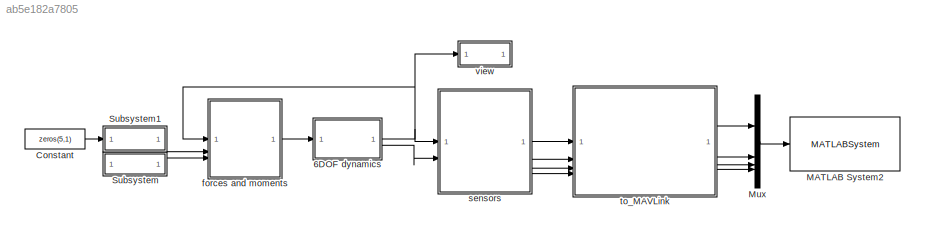
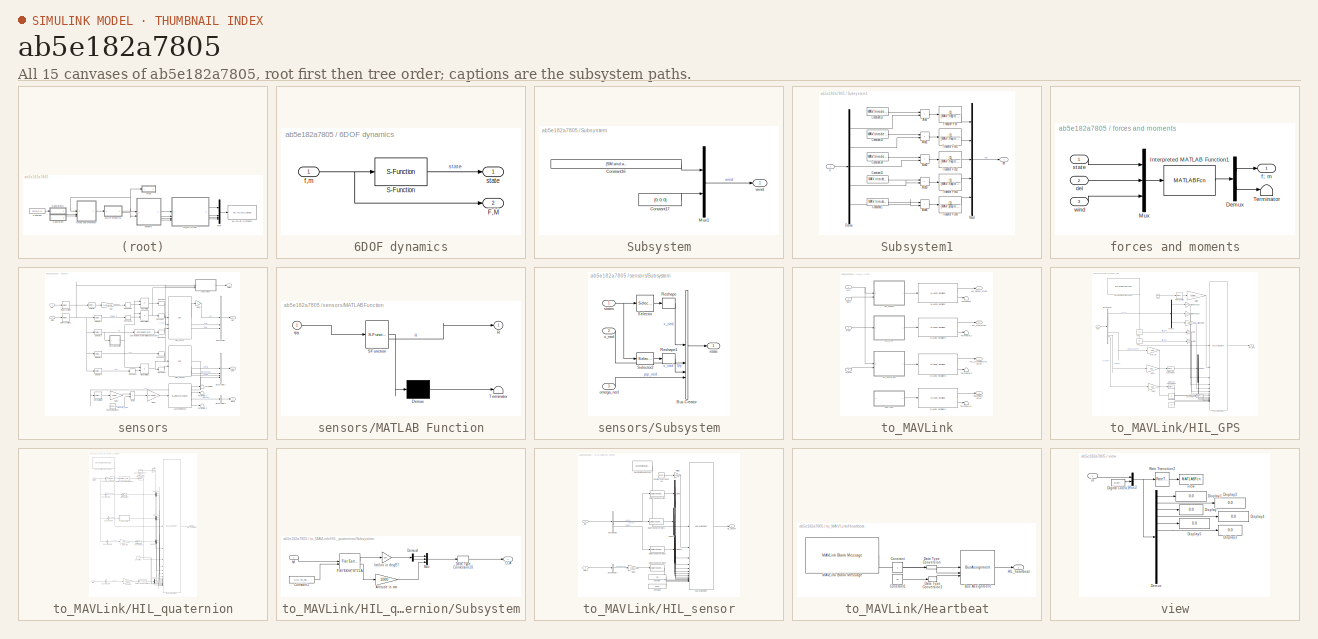
[diagram: thumbnail index - all 15 canvases of the model, root first then tree order]
MODEL slx_ab5e182a7805
KIND model
CONFIG AbsTol = auto
CONFIG EnableMultiTasking = off
CONFIG FixedStep = 0.005
CONFIG MaxStep = auto
CONFIG MinStep = auto
CONFIG RelTol = 1e-3
CONFIG SampleTimeConstraint = Unconstrained
CONFIG SolverName = FixedStepAuto
CONFIG StartTime = 0.0
CONFIG StopTime = 10
BLOCK [SubSystem] 6DOF dynamics
BLOCK [Outport] 6DOF dynamics/F,M
  Port = 2
BLOCK [S-Function] 6DOF dynamics/S-Function
  EnableBusSupport = off
  FunctionName = UAVdynamics
  Parameters = MAV
  SFcnIsStateOwnerBlock = off
  SFunctionDeploymentMode = off
BLOCK [Inport] 6DOF dynamics/f,m
BLOCK [Outport] 6DOF dynamics/state
BLOCK [Constant] Constant
  Value = zeros(5,1)
BLOCK [MATLABSystem] MATLAB System2
  Commented = on
  MaskDisplay = disp('px4HostTarget_TCPIP_Write');
  MaskType = px4HostTarget_TCPIP_Write
  System = px4HostTarget_TCPIP_Write
BLOCK [Mux] Mux
  DisplayOption = bar
BLOCK [SubSystem] Subsystem
BLOCK [Constant] Subsystem/Constant16
  Value = [SIM.wind.wn_s; SIM.wind.we_s; SIM.wind.wd_s]
BLOCK [Constant] Subsystem/Constant17
  Value = [0; 0; 0]
BLOCK [Mux] Subsystem/Mux1
  DisplayOption = bar
  Inputs = 2
BLOCK [Outport] Subsystem/wind
BLOCK [SubSystem] Subsystem1
BLOCK [Sum] Subsystem1/Add
  IconShape = rectangular
BLOCK [Sum] Subsystem1/Add1
  IconShape = rectangular
BLOCK [Sum] Subsystem1/Add2
  IconShape = rectangular
BLOCK [Sum] Subsystem1/Add3
  IconShape = rectangular
BLOCK [Sum] Subsystem1/Add4
  IconShape = rectangular
BLOCK [Constant] Subsystem1/Constant1
  Value = MAV.trim.delt
BLOCK [Constant] Subsystem1/Constant12
  Value = MAV.trim.del1
BLOCK [Constant] Subsystem1/Constant13
  Value = MAV.trim.del2
BLOCK [Constant] Subsystem1/Constant14
  Value = MAV.trim.del3
BLOCK [Constant] Subsystem1/Constant15
  Value = MAV.trim.del4
BLOCK [Demux] Subsystem1/Demux
  Outputs = 5
BLOCK [Mux] Subsystem1/Mux3
  DisplayOption = bar
  Inputs = 5
BLOCK [TransferFcn] Subsystem1/Transfer Fcn
  Denominator = [MAV.flap.tc 1]
BLOCK [TransferFcn] Subsystem1/Transfer Fcn1
  Denominator = [MAV.flap.tc 1]
BLOCK [TransferFcn] Subsystem1/Transfer Fcn2
  Denominator = [MAV.flap.tc 1]
BLOCK [TransferFcn] Subsystem1/Transfer Fcn3
  Denominator = [MAV.flap.tc 1]
BLOCK [TransferFcn] Subsystem1/Transfer Fcn4
  Denominator = [MAV.prop.tc 1]
BLOCK [Outport] Subsystem1/del
BLOCK [Inport] Subsystem1/u
BLOCK [SubSystem] forces and moments
BLOCK [Demux] forces and moments/Demux
  Outputs = [6,3]
BLOCK [MATLABFcn] forces and moments/Interpreted MATLAB Function1
  MATLABFcn = force_moment(u(1:12), u(13:17), u(18:23), MAV)
  OutputDimensions = 9
BLOCK [Mux] forces and moments/Mux
  DisplayOption = bar
  Inputs = 3
BLOCK [Terminator] forces and moments/Terminator
BLOCK [Inport] forces and moments/del
  Port = 2
BLOCK [Outport] forces and moments/f; m
BLOCK [Inport] forces and moments/state
BLOCK [Inport] forces and moments/wind
  Port = 3
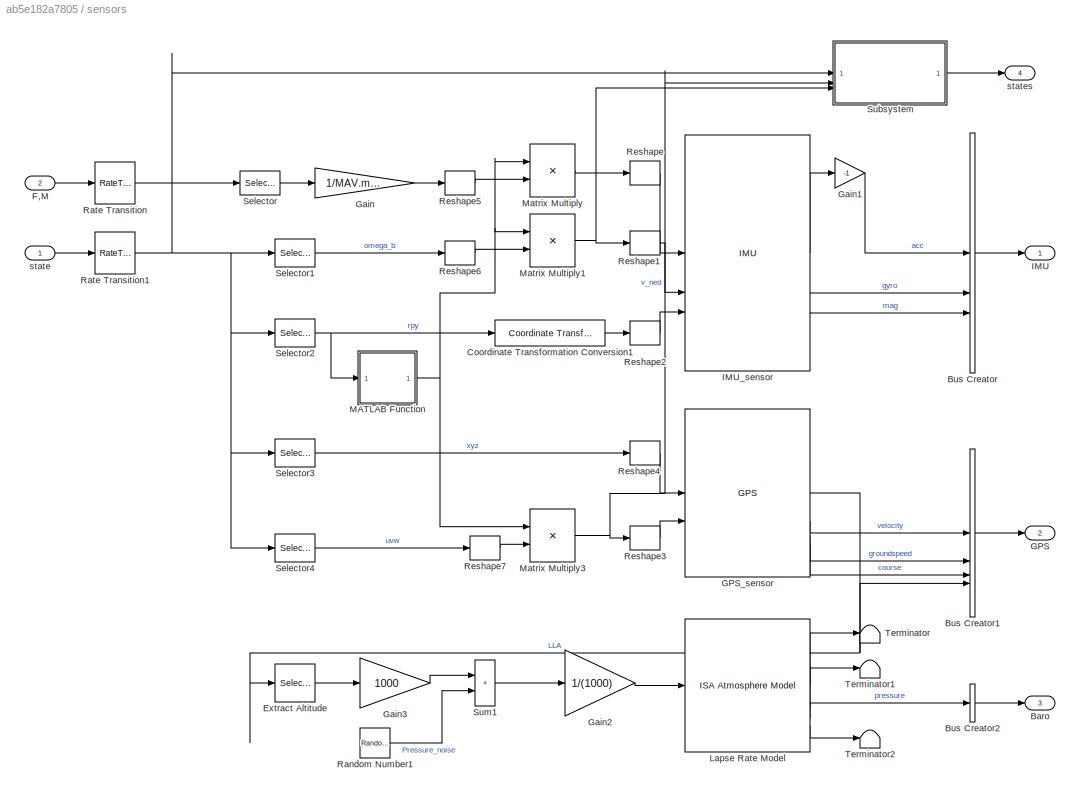
BLOCK [SubSystem] sensors
BLOCK [Outport] sensors/Baro
  Port = 3
BLOCK [BusCreator] sensors/Bus Creator
  DisplayOption = bar
  InheritFromInputs = on
  Inputs = 3
BLOCK [BusCreator] sensors/Bus Creator1
  DisplayOption = bar
  InheritFromInputs = on
  Inputs = 4
BLOCK [BusCreator] sensors/Bus Creator2
  DisplayOption = bar
  InheritFromInputs = on
  Inputs = 1
BLOCK [Reference] sensors/Coordinate Transformation Conversion1  REF=robotcorelib/Coordinate Transformation Conversion
  SourceBlock = robotcorelib/Coordinate Transformation Conversion
  SourceType = robotics.slcore.internal.block.CoordinateTransformationConversion
BLOCK [Selector] sensors/Extract Altitude
  IndexOptions = Index vector (dialog)
  Indices = [3]
  InputPortWidth = 3
  OutputSizes = 1
BLOCK [Inport] sensors/F,M
  Port = 2
BLOCK [Outport] sensors/GPS
  Port = 2
BLOCK [Reference] sensors/GPS_sensor  REF=sensorgpslib/GPS
  LibrarySourceBlock = uavsimlib/GPS
  SourceBlock = sensorgpslib/GPS
  SourceType = fusion.internal.simulink.gpsSensor
BLOCK [Gain] sensors/Gain
  Gain = 1/MAV.mass
BLOCK [Gain] sensors/Gain1
  Gain = -1
BLOCK [Gain] sensors/Gain2
  Gain = 1/(1000)
BLOCK [Gain] sensors/Gain3
  Gain = 1000
BLOCK [Outport] sensors/IMU
BLOCK [Reference] sensors/IMU_sensor  REF=mspsensorlib/IMU
  SourceBlock = mspsensorlib/IMU
  SourceType = fusion.simulink.imuSensor
BLOCK [Reference] sensors/Lapse Rate Model  REF=aerolibatmos2/ISA Atmosphere Model
  SourceBlock = aerolibatmos2/ISA Atmosphere Model
  SourceType = International Standard Atmosphere Model
BLOCK [SubSystem] sensors/MATLAB Function
  ErrorFcn = Stateflow.Translate.translate
  PermitHierarchicalResolution = ExplicitOnly
  SFBlockType = MATLAB Function
  TreatAsAtomicUnit = on
BLOCK [Demux] sensors/MATLAB Function/ Demux 
  Outputs = 1
BLOCK [S-Function] sensors/MATLAB Function/ SFunction 
  EnableBusSupport = on
  FunctionName = sf_sfun
  PortCounts = [1 2]
  SFcnIsStateOwnerBlock = off
  SFunctionDeploymentMode = off
  Tag = Stateflow S-Function 2
BLOCK [Terminator] sensors/MATLAB Function/ Terminator 
BLOCK [Outport] sensors/MATLAB Function/R
BLOCK [Inport] sensors/MATLAB Function/rpy
BLOCK [Product] sensors/Matrix Multiply
  Multiplication = Matrix(*)
BLOCK [Product] sensors/Matrix Multiply1
  Multiplication = Matrix(*)
BLOCK [Product] sensors/Matrix Multiply3
  Multiplication = Matrix(*)
BLOCK [RandomNumber] sensors/Random Number1
  SampleTime = sample_time
  Seed = 10
  Variance = 10000
BLOCK [RateTransition] sensors/Rate Transition
  OutPortSampleTime = 0.01
BLOCK [RateTransition] sensors/Rate Transition1
  OutPortSampleTime = 0.01
BLOCK [Reshape] sensors/Reshape
  OutputDimensionality = Row vector (2-D)
BLOCK [Reshape] sensors/Reshape1
  OutputDimensionality = Row vector (2-D)
BLOCK [Reshape] sensors/Reshape2
  OutputDimensionality = Row vector (2-D)
BLOCK [Reshape] sensors/Reshape3
  OutputDimensionality = Row vector (2-D)
BLOCK [Reshape] sensors/Reshape4
  OutputDimensionality = Row vector (2-D)
BLOCK [Reshape] sensors/Reshape5
  OutputDimensionality = Column vector (2-D)
BLOCK [Reshape] sensors/Reshape6
  OutputDimensionality = Column vector (2-D)
BLOCK [Reshape] sensors/Reshape7
  OutputDimensionality = Column vector (2-D)
BLOCK [Selector] sensors/Selector
  IndexOptions = Index vector (dialog)
  Indices = [1:3]
  InputPortWidth = 6
  OutputSizes = 1
BLOCK [Selector] sensors/Selector1
  IndexOptions = Index vector (dialog)
  Indices = [10:12]
  InputPortWidth = 12
  OutputSizes = 1
BLOCK [Selector] sensors/Selector2
  IndexOptions = Index vector (dialog)
  Indices = [7:9]
  InputPortWidth = 12
  OutputSizes = 1
BLOCK [Selector] sensors/Selector3
  IndexOptions = Index vector (dialog)
  Indices = [1:3]
  InputPortWidth = 12
  OutputSizes = 1
BLOCK [Selector] sensors/Selector4
  IndexOptions = Index vector (dialog)
  Indices = [4:6]
  InputPortWidth = 12
  OutputSizes = 1
BLOCK [SubSystem] sensors/Subsystem
BLOCK [BusCreator] sensors/Subsystem/Bus Creator
  DisplayOption = bar
  InheritFromInputs = on
  Inputs = 4
BLOCK [Reshape] sensors/Subsystem/Reshape
  OutputDimensionality = Column vector (2-D)
BLOCK [Reshape] sensors/Subsystem/Reshape1
  OutputDimensionality = Column vector (2-D)
BLOCK [Selector] sensors/Subsystem/Selector
  IndexOptions = Index vector (dialog)
  Indices = [1:3]
  InputPortWidth = 12
  OutputSizes = 1
BLOCK [Selector] sensors/Subsystem/Selector2
  IndexOptions = Index vector (dialog)
  Indices = [7:9]
  InputPortWidth = 12
  OutputSizes = 1
BLOCK [Inport] sensors/Subsystem/omega_ned
  Port = 3
BLOCK [Outport] sensors/Subsystem/state
BLOCK [Inport] sensors/Subsystem/states
BLOCK [Inport] sensors/Subsystem/v_ned
  Port = 2
BLOCK [Sum] sensors/Sum1
  IconShape = rectangular
  Inputs = |++
BLOCK [Terminator] sensors/Terminator
BLOCK [Terminator] sensors/Terminator1
BLOCK [Terminator] sensors/Terminator2
BLOCK [Inport] sensors/state
BLOCK [Outport] sensors/states
  Port = 4
BLOCK [SubSystem] to_MAVLink
BLOCK [Inport] to_MAVLink/Baro
  Port = 3
BLOCK [Inport] to_MAVLink/GPS
  Port = 2
BLOCK [Outport] to_MAVLink/HEARTBEAT_bytes
  Port = 4
BLOCK [SubSystem] to_MAVLink/HIL_GPS
BLOCK [Constant] to_MAVLink/HIL_GPS/ 
  OutDataTypeStr = Inherit: Inherit via back propagation
  SampleTime = -1
  Value = 10
BLOCK [Gain] to_MAVLink/HIL_GPS/Altitude in mm
  Gain = 1000
  OutDataTypeStr = Inherit: Inherit via back propagation
BLOCK [BusAssignment] to_MAVLink/HIL_GPS/Bus Assignment
  AssignedSignals = Payload.time_usec,Payload.lat,Payload.lon,Payload.alt,Payload.eph,Payload.epv,Payload.vel,Payload.vn,Payload.ve,Payload.vd,Payload.cog,Payload.fix_type,Payload.satellites_visible
BLOCK [BusSelector] to_MAVLink/HIL_GPS/Bus Selector
  OutputSignals = LLA,groundspeed,velocity,course
BLOCK [Clock] to_MAVLink/HIL_GPS/Clock
BLOCK [Constant] to_MAVLink/HIL_GPS/Constant3
  OutDataTypeStr = Inherit: Inherit via back propagation
  SampleTime = -1
  Value = 3
BLOCK [DataTypeConversion] to_MAVLink/HIL_GPS/Data Type Conversion1
  OutDataTypeStr = uint16
  RndMeth = Floor
  SaturateOnIntegerOverflow = off
BLOCK [DataTypeConversion] to_MAVLink/HIL_GPS/Data Type Conversion2
  OutDataTypeStr = int16
  RndMeth = Floor
  SaturateOnIntegerOverflow = off
BLOCK [DataTypeConversion] to_MAVLink/HIL_GPS/Data Type Conversion3
  OutDataTypeStr = uint8
  RndMeth = Floor
  SaturateOnIntegerOverflow = off
BLOCK [Demux] to_MAVLink/HIL_GPS/Demux
  Outputs = 3
BLOCK [Demux] to_MAVLink/HIL_GPS/Demux1
  Outputs = 3
BLOCK [Inport] to_MAVLink/HIL_GPS/GPS
BLOCK [Gain] to_MAVLink/HIL_GPS/Gain
  Gain = 100
  OutDataTypeStr = Inherit: Inherit via back propagation
BLOCK [Gain] to_MAVLink/HIL_GPS/Gain1
  Gain = 100
BLOCK [Gain] to_MAVLink/HIL_GPS/Gain3
  Gain = 100
  OutDataTypeStr = Inherit: Inherit via back propagation
BLOCK [Gain] to_MAVLink/HIL_GPS/Gain4
  Gain = 100
BLOCK [Outport] to_MAVLink/HIL_GPS/HIL_GPS
BLOCK [Reference] to_MAVLink/HIL_GPS/MAVLink Blank Message2  REF=uavmavlinklib/MAVLink Blank Message
  SourceBlock = uavmavlinklib/MAVLink Blank Message
  SourceType = MAVLink Blank Message
BLOCK [Gain] to_MAVLink/HIL_GPS/Multiply
  Gain = sample_time*1e6
  OutDataTypeStr = Inherit: Inherit via back propagation
BLOCK [RateTransition] to_MAVLink/HIL_GPS/Rate Transition
BLOCK [Constant] to_MAVLink/HIL_GPS/eph
  SampleTime = -1
  Value = 0.3
BLOCK [Constant] to_MAVLink/HIL_GPS/epv
  SampleTime = -1
  Value = 0.4
BLOCK [Gain] to_MAVLink/HIL_GPS/lat//lon in degE1
  Gain = 1e7
  OutDataTypeStr = Inherit: Inherit via back propagation
BLOCK [Gain] to_MAVLink/HIL_GPS/lat//lon in degE7
  Gain = 1e7
  OutDataTypeStr = Inherit: Inherit via back propagation
BLOCK [Gain] to_MAVLink/HIL_GPS/m_to_cm
  Gain = 100
  OutDataTypeStr = uint16
BLOCK [Outport] to_MAVLink/HIL_GPS_bytes
  Port = 2
BLOCK [Outport] to_MAVLink/HIL_QUATERNION_bytes
  Port = 3
BLOCK [Outport] to_MAVLink/HIL_Sensor_bytes
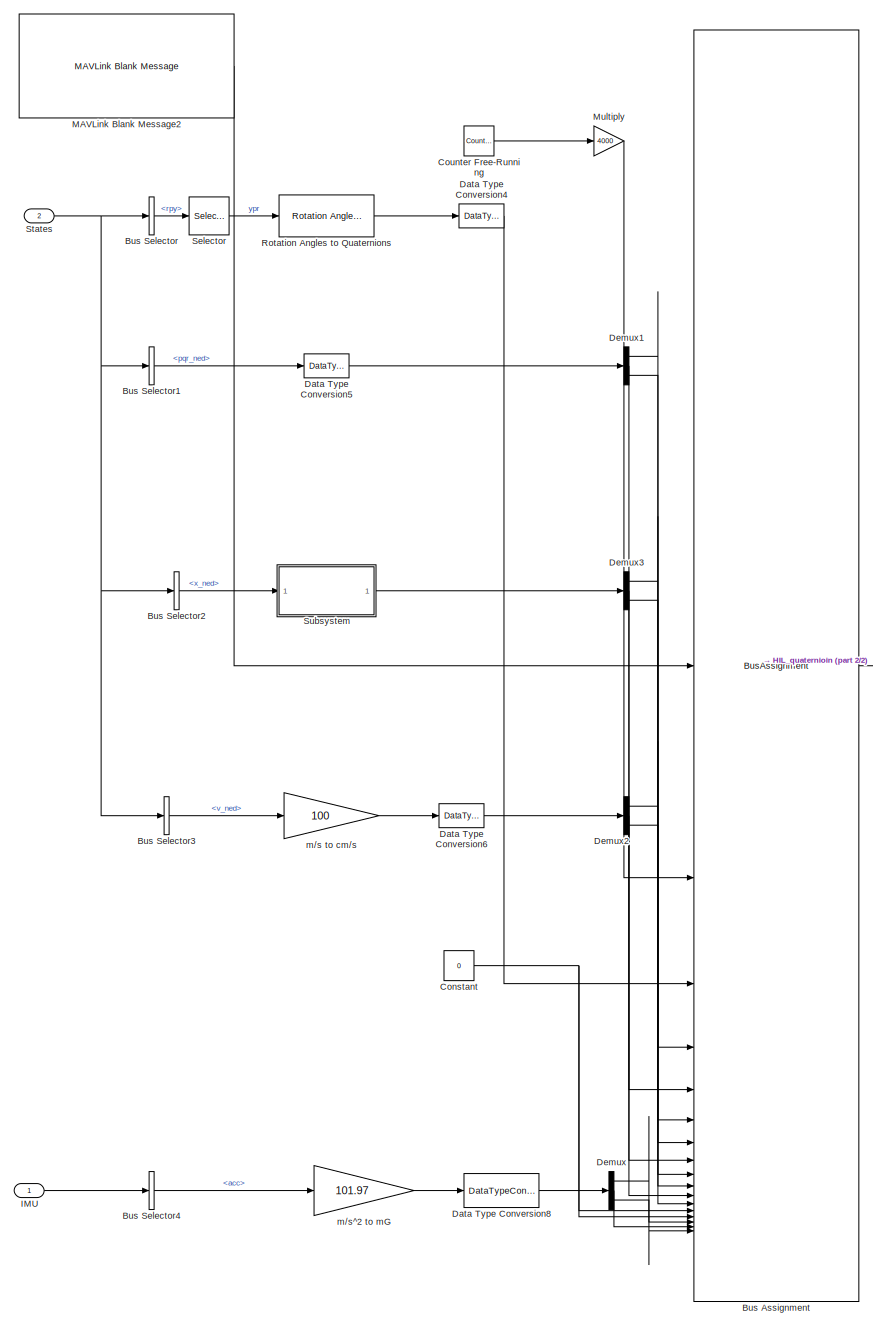
[diagram: to_MAVLink/HIL_quaternion - part 1/2, most of the canvas]
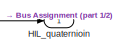
[diagram: to_MAVLink/HIL_quaternion - part 2/2, middle right region]
BLOCK [SubSystem] to_MAVLink/HIL_quaternion
BLOCK [BusAssignment] to_MAVLink/HIL_quaternion/Bus Assignment
  AssignedSignals = Payload.time_usec,Payload.attitude_quaternion,Payload.rollspeed,Payload.pitchspeed,Payload.yawspeed,Payload.lat,Payload.lon,Payload.alt,Payload.vx,Payload.vy,Payload.vz,Payload.ind_airspeed,Payload.true_airspeed,Payload.xacc,Payload.yacc,Payload.zacc
BLOCK [BusSelector] to_MAVLink/HIL_quaternion/Bus Selector
  OutputSignals = rpy
BLOCK [BusSelector] to_MAVLink/HIL_quaternion/Bus Selector1
  OutputSignals = pqr_ned
BLOCK [BusSelector] to_MAVLink/HIL_quaternion/Bus Selector2
  OutputSignals = x_ned
BLOCK [BusSelector] to_MAVLink/HIL_quaternion/Bus Selector3
  OutputSignals = v_ned
BLOCK [BusSelector] to_MAVLink/HIL_quaternion/Bus Selector4
  OutputSignals = acc
BLOCK [Constant] to_MAVLink/HIL_quaternion/Constant
  OutDataTypeStr = Inherit: Inherit via back propagation
  Value = 0
BLOCK [Reference] to_MAVLink/HIL_quaternion/Counter Free-Running  REF=simulink/Sources/Counter
Free-Running
  SourceBlock = simulink/Sources/Counter\nFree-Running
  SourceType = Counter Free-Running
BLOCK [DataTypeConversion] to_MAVLink/HIL_quaternion/Data Type Conversion4
  OutDataTypeStr = single
  RndMeth = Floor
  SaturateOnIntegerOverflow = off
BLOCK [DataTypeConversion] to_MAVLink/HIL_quaternion/Data Type Conversion5
  OutDataTypeStr = single
  RndMeth = Floor
  SaturateOnIntegerOverflow = off
BLOCK [DataTypeConversion] to_MAVLink/HIL_quaternion/Data Type Conversion6
  OutDataTypeStr = int16
  RndMeth = Floor
  SaturateOnIntegerOverflow = off
BLOCK [DataTypeConversion] to_MAVLink/HIL_quaternion/Data Type Conversion8
  OutDataTypeStr = int16
  RndMeth = Floor
  SaturateOnIntegerOverflow = off
BLOCK [Demux] to_MAVLink/HIL_quaternion/Demux
  Outputs = 3
BLOCK [Demux] to_MAVLink/HIL_quaternion/Demux1
  Outputs = 3
BLOCK [Demux] to_MAVLink/HIL_quaternion/Demux2
  Outputs = 3
BLOCK [Demux] to_MAVLink/HIL_quaternion/Demux3
  Outputs = 3
BLOCK [Outport] to_MAVLink/HIL_quaternion/HIL_quaternioin
BLOCK [Inport] to_MAVLink/HIL_quaternion/IMU
BLOCK [Reference] to_MAVLink/HIL_quaternion/MAVLink Blank Message2  REF=uavmavlinklib/MAVLink Blank Message
  SourceBlock = uavmavlinklib/MAVLink Blank Message
  SourceType = MAVLink Blank Message
BLOCK [Gain] to_MAVLink/HIL_quaternion/Multiply
  Gain = 4000
  OutDataTypeStr = Inherit: Inherit via back propagation
BLOCK [Reference] to_MAVLink/HIL_quaternion/Rotation Angles to Quaternions  REF=sharedtransform/Rotation Angles to Quaternions
  AttributesFormatString = Rotation Order: %<rotationOrder>
  SourceBlock = sharedtransform/Rotation Angles to Quaternions
  SourceType = Ang2Quat
BLOCK [Selector] to_MAVLink/HIL_quaternion/Selector
  IndexOptions = Index vector (dialog)
  Indices = [3 2 1]
  InputPortWidth = 3
  OutputSizes = 1
BLOCK [Inport] to_MAVLink/HIL_quaternion/States
  Port = 2
BLOCK [SubSystem] to_MAVLink/HIL_quaternion/Subsystem
BLOCK [Gain] to_MAVLink/HIL_quaternion/Subsystem/Altitude in mm
  Gain = 1000
BLOCK [Constant] to_MAVLink/HIL_quaternion/Subsystem/Constant1
  OutDataTypeStr = Inherit: Inherit via back propagation
  Value = SIM.ref_height
BLOCK [DataTypeConversion] to_MAVLink/HIL_quaternion/Subsystem/Data Type Conversion10
  OutDataTypeStr = int32
  RndMeth = Floor
  SaturateOnIntegerOverflow = off
BLOCK [Demux] to_MAVLink/HIL_quaternion/Subsystem/Demux4
  Outputs = 2
BLOCK [Reference] to_MAVLink/HIL_quaternion/Subsystem/Flat Earth to LLA  REF=aerolibtransform2/Flat Earth to LLA
  SourceBlock = aerolibtransform2/Flat Earth to LLA
  SourceType = Flat Earth to LLA
BLOCK [Outport] to_MAVLink/HIL_quaternion/Subsystem/LLA
BLOCK [Mux] to_MAVLink/HIL_quaternion/Subsystem/Mux
  DisplayOption = bar
  Inputs = 3
BLOCK [Gain] to_MAVLink/HIL_quaternion/Subsystem/lat//lon in degE7
  Gain = 1e7
BLOCK [Inport] to_MAVLink/HIL_quaternion/Subsystem/xyz
BLOCK [Gain] to_MAVLink/HIL_quaternion/m//s to cm//s
  Gain = 100
BLOCK [Gain] to_MAVLink/HIL_quaternion/m//s^2 to mG
  Gain = 101.97
BLOCK [SubSystem] to_MAVLink/HIL_sensor
BLOCK [Inport] to_MAVLink/HIL_sensor/Baro
  Port = 2
BLOCK [BusAssignment] to_MAVLink/HIL_sensor/Bus Assignment
  AssignedSignals = Payload.time_usec,Payload.xacc,Payload.yacc,Payload.zacc,Payload.xgyro,Payload.ygyro,Payload.zgyro,Payload.xmag,Payload.ymag,Payload.zmag,Payload.abs_pressure,Payload.temperature,Payload.fields_updated
BLOCK [BusSelector] to_MAVLink/HIL_sensor/Bus Selector
  OutputSignals = acc,gyro,mag
BLOCK [BusSelector] to_MAVLink/HIL_sensor/Bus Selector1
  OutputSignals = pressure
BLOCK [Constant] to_MAVLink/HIL_sensor/Constant
  OutDataTypeStr = single
  SampleTime = sample_time
  Value = 25
BLOCK [Constant] to_MAVLink/HIL_sensor/Constant1
  OutDataTypeStr = uint32
  SampleTime = sample_time
  Value = 8191
BLOCK [Reference] to_MAVLink/HIL_sensor/Counter Free-Running  REF=simulink/Sources/Counter
Free-Running
  SourceBlock = simulink/Sources/Counter\nFree-Running
  SourceType = Counter Free-Running
BLOCK [DataTypeConversion] to_MAVLink/HIL_sensor/Data Type Conversion
  OutDataTypeStr = single
  RndMeth = Floor
  SaturateOnIntegerOverflow = off
BLOCK [DataTypeConversion] to_MAVLink/HIL_sensor/Data Type Conversion1
  OutDataTypeStr = single
  RndMeth = Floor
  SaturateOnIntegerOverflow = off
BLOCK [DataTypeConversion] to_MAVLink/HIL_sensor/Data Type Conversion2
  OutDataTypeStr = single
  RndMeth = Floor
  SaturateOnIntegerOverflow = off
BLOCK [DataTypeConversion] to_MAVLink/HIL_sensor/Data Type Conversion3
  OutDataTypeStr = single
  RndMeth = Floor
  SaturateOnIntegerOverflow = off
BLOCK [Demux] to_MAVLink/HIL_sensor/Demux
  Outputs = 3
BLOCK [Demux] to_MAVLink/HIL_sensor/Demux1
  Outputs = 3
BLOCK [Demux] to_MAVLink/HIL_sensor/Demux2
  Outputs = 3
BLOCK [Gain] to_MAVLink/HIL_sensor/Gain1
  Gain = 0.01
BLOCK [Outport] to_MAVLink/HIL_sensor/HIL_Sensor
BLOCK [Inport] to_MAVLink/HIL_sensor/IMU
BLOCK [Reference] to_MAVLink/HIL_sensor/MAVLink Blank Message  REF=uavmavlinklib/MAVLink Blank Message
  SourceBlock = uavmavlinklib/MAVLink Blank Message
  SourceType = MAVLink Blank Message
BLOCK [Gain] to_MAVLink/HIL_sensor/Multiply
  Gain = 4000
  OutDataTypeStr = Inherit: Inherit via back propagation
BLOCK [SubSystem] to_MAVLink/Heartbeat
BLOCK [BusAssignment] to_MAVLink/Heartbeat/Bus Assignment
  AssignedSignals = Payload.autopilot,Payload.type
BLOCK [Constant] to_MAVLink/Heartbeat/Constant
  SampleTime = sample_time
BLOCK [Constant] to_MAVLink/Heartbeat/Constant1
  SampleTime = sample_time
  Value = 12
BLOCK [DataTypeConversion] to_MAVLink/Heartbeat/Data Type Conversion
  OutDataTypeStr = uint8
  RndMeth = Floor
  SaturateOnIntegerOverflow = off
BLOCK [DataTypeConversion] to_MAVLink/Heartbeat/Data Type Conversion1
  OutDataTypeStr = uint8
  RndMeth = Floor
  SaturateOnIntegerOverflow = off
BLOCK [Outport] to_MAVLink/Heartbeat/HIL_heartbeat
BLOCK [Reference] to_MAVLink/Heartbeat/MAVLink Blank Message  REF=uavmavlinklib/MAVLink Blank Message
  SourceBlock = uavmavlinklib/MAVLink Blank Message
  SourceType = MAVLink Blank Message
BLOCK [Inport] to_MAVLink/IMU
BLOCK [Reference] to_MAVLink/MAVLink Serializer  REF=uavmavlinklib/MAVLink Serializer
  SourceBlock = uavmavlinklib/MAVLink Serializer
  SourceType = MAVLink Serializer
BLOCK [Reference] to_MAVLink/MAVLink Serializer1  REF=uavmavlinklib/MAVLink Serializer
  SourceBlock = uavmavlinklib/MAVLink Serializer
  SourceType = MAVLink Serializer
BLOCK [Reference] to_MAVLink/MAVLink Serializer2  REF=uavmavlinklib/MAVLink Serializer
  SourceBlock = uavmavlinklib/MAVLink Serializer
  SourceType = MAVLink Serializer
BLOCK [Reference] to_MAVLink/MAVLink Serializer3  REF=uavmavlinklib/MAVLink Serializer
  SourceBlock = uavmavlinklib/MAVLink Serializer
  SourceType = MAVLink Serializer
BLOCK [Terminator] to_MAVLink/Terminator
BLOCK [Terminator] to_MAVLink/Terminator1
BLOCK [Terminator] to_MAVLink/Terminator2
BLOCK [Terminator] to_MAVLink/Terminator4
BLOCK [Inport] to_MAVLink/states
  Port = 4
BLOCK [SubSystem] view
BLOCK [Demux] view/Demux
  Outputs = 13
BLOCK [DigitalClock] view/Digital Clock1
  SampleTime = 0.005
BLOCK [Display] view/Display
  Decimation = 1
BLOCK [Display] view/Display1
  Decimation = 1
BLOCK [Display] view/Display2
  Decimation = 1
BLOCK [Display] view/Display3
  Decimation = 1
BLOCK [Display] view/Display4
  Decimation = 1
BLOCK [Display] view/Display5
  Decimation = 1
BLOCK [Mux] view/Mux2
  DisplayOption = bar
  Inputs = 2
BLOCK [RateTransition] view/Rate Transition2
  OutPortSampleTime = 0.1
BLOCK [Inport] view/in
BLOCK [MATLABFcn] view/view
  MATLABFcn = drawaircraft(u)
  OutputDimensions = 0
LINE 6DOF dynamics/S-Function:1 -> 6DOF dynamics/state:1
NET 6DOF dynamics/f,m:1 -> 6DOF dynamics/F,M:1, 6DOF dynamics/S-Function:1
NET 6DOF dynamics:1 -> forces and moments:1, sensors:1, view:1
LINE 6DOF dynamics:2 -> sensors:2
LINE Constant:1 -> Subsystem1:1
LINE Mux:1 -> MATLAB System2:1
LINE Subsystem/Constant16:1 -> Subsystem/Mux1:1
LINE Subsystem/Constant17:1 -> Subsystem/Mux1:2
LINE Subsystem/Mux1:1 -> Subsystem/wind:1
LINE Subsystem1/Add1:1 -> Subsystem1/Transfer Fcn1:1
LINE Subsystem1/Add2:1 -> Subsystem1/Transfer Fcn2:1
LINE Subsystem1/Add3:1 -> Subsystem1/Transfer Fcn3:1
LINE Subsystem1/Add4:1 -> Subsystem1/Transfer Fcn4:1
LINE Subsystem1/Add:1 -> Subsystem1/Transfer Fcn:1
LINE Subsystem1/Constant12:1 -> Subsystem1/Add:1
LINE Subsystem1/Constant13:1 -> Subsystem1/Add1:1
LINE Subsystem1/Constant14:1 -> Subsystem1/Add2:1
LINE Subsystem1/Constant15:1 -> Subsystem1/Add3:1
LINE Subsystem1/Constant1:1 -> Subsystem1/Add4:1
LINE Subsystem1/Demux:1 -> Subsystem1/Add:2
LINE Subsystem1/Demux:2 -> Subsystem1/Add1:2
LINE Subsystem1/Demux:3 -> Subsystem1/Add2:2
LINE Subsystem1/Demux:4 -> Subsystem1/Add3:2
LINE Subsystem1/Demux:5 -> Subsystem1/Add4:2
LINE Subsystem1/Mux3:1 -> Subsystem1/del:1
LINE Subsystem1/Transfer Fcn1:1 -> Subsystem1/Mux3:2
LINE Subsystem1/Transfer Fcn2:1 -> Subsystem1/Mux3:3
LINE Subsystem1/Transfer Fcn3:1 -> Subsystem1/Mux3:4
LINE Subsystem1/Transfer Fcn4:1 -> Subsystem1/Mux3:5
LINE Subsystem1/Transfer Fcn:1 -> Subsystem1/Mux3:1
LINE Subsystem1/u:1 -> Subsystem1/Demux:1
LINE Subsystem1:1 -> forces and moments:2
LINE Subsystem:1 -> forces and moments:3
LINE forces and moments/Demux:1 -> forces and moments/f; m:1
LINE forces and moments/Demux:2 -> forces and moments/Terminator:1
LINE forces and moments/Interpreted MATLAB Function1:1 -> forces and moments/Demux:1
LINE forces and moments/Mux:1 -> forces and moments/Interpreted MATLAB Function1:1
LINE forces and moments/del:1 -> forces and moments/Mux:2
LINE forces and moments/state:1 -> forces and moments/Mux:1
LINE forces and moments/wind:1 -> forces and moments/Mux:3
LINE forces and moments:1 -> 6DOF dynamics:1
LINE sensors/Bus Creator1:1 -> sensors/GPS:1
LINE sensors/Bus Creator2:1 -> sensors/Baro:1
LINE sensors/Bus Creator:1 -> sensors/IMU:1
LINE sensors/Coordinate Transformation Conversion1:1 -> sensors/Reshape2:1
LINE sensors/Extract Altitude:1 -> sensors/Gain3:1
LINE sensors/F,M:1 -> sensors/Rate Transition:1
NET sensors/GPS_sensor:1 -> sensors/Bus Creator1:4, sensors/Extract Altitude:1
LINE sensors/GPS_sensor:2 -> sensors/Bus Creator1:1
LINE sensors/GPS_sensor:3 -> sensors/Bus Creator1:2
LINE sensors/GPS_sensor:4 -> sensors/Bus Creator1:3
LINE sensors/Gain1:1 -> sensors/Bus Creator:1
LINE sensors/Gain2:1 -> sensors/Lapse Rate Model:1
LINE sensors/Gain3:1 -> sensors/Sum1:1
LINE sensors/Gain:1 -> sensors/Reshape5:1
LINE sensors/IMU_sensor:1 -> sensors/Gain1:1
LINE sensors/IMU_sensor:2 -> sensors/Bus Creator:2
LINE sensors/IMU_sensor:3 -> sensors/Bus Creator:3
LINE sensors/Lapse Rate Model:1 -> sensors/Terminator:1
LINE sensors/Lapse Rate Model:2 -> sensors/Terminator1:1
LINE sensors/Lapse Rate Model:3 -> sensors/Bus Creator2:1
LINE sensors/Lapse Rate Model:4 -> sensors/Terminator2:1
NET sensors/MATLAB Function:1 -> sensors/Matrix Multiply1:1, sensors/Matrix Multiply3:1, sensors/Matrix Multiply:1
NET sensors/Matrix Multiply1:1 -> sensors/Reshape1:1, sensors/Subsystem:3
NET sensors/Matrix Multiply3:1 -> sensors/Reshape3:1, sensors/Subsystem:2
LINE sensors/Matrix Multiply:1 -> sensors/Reshape:1
LINE sensors/Random Number1:1 -> sensors/Sum1:2
NET sensors/Rate Transition1:1 -> sensors/Selector1:1, sensors/Selector2:1, sensors/Selector3:1, sensors/Selector4:1, sensors/Subsystem:1
LINE sensors/Rate Transition:1 -> sensors/Selector:1
LINE sensors/Reshape1:1 -> sensors/IMU_sensor:2
LINE sensors/Reshape2:1 -> sensors/IMU_sensor:3
LINE sensors/Reshape3:1 -> sensors/GPS_sensor:2
LINE sensors/Reshape4:1 -> sensors/GPS_sensor:1
LINE sensors/Reshape5:1 -> sensors/Matrix Multiply:2
LINE sensors/Reshape6:1 -> sensors/Matrix Multiply1:2
LINE sensors/Reshape7:1 -> sensors/Matrix Multiply3:2
LINE sensors/Reshape:1 -> sensors/IMU_sensor:1
LINE sensors/Selector1:1 -> sensors/Reshape6:1
NET sensors/Selector2:1 -> sensors/Coordinate Transformation Conversion1:1, sensors/MATLAB Function:1
LINE sensors/Selector3:1 -> sensors/Reshape4:1
LINE sensors/Selector4:1 -> sensors/Reshape7:1
LINE sensors/Selector:1 -> sensors/Gain:1
LINE sensors/Subsystem/Bus Creator:1 -> sensors/Subsystem/state:1
LINE sensors/Subsystem/Reshape1:1 -> sensors/Subsystem/Bus Creator:3
LINE sensors/Subsystem/Reshape:1 -> sensors/Subsystem/Bus Creator:1
LINE sensors/Subsystem/Selector2:1 -> sensors/Subsystem/Reshape1:1
LINE sensors/Subsystem/Selector:1 -> sensors/Subsystem/Reshape:1
LINE sensors/Subsystem/omega_ned:1 -> sensors/Subsystem/Bus Creator:4
NET sensors/Subsystem/states:1 -> sensors/Subsystem/Selector2:1, sensors/Subsystem/Selector:1
LINE sensors/Subsystem/v_ned:1 -> sensors/Subsystem/Bus Creator:2
LINE sensors/Subsystem:1 -> sensors/states:1
LINE sensors/Sum1:1 -> sensors/Gain2:1
LINE sensors/state:1 -> sensors/Rate Transition1:1
LINE sensors:1 -> to_MAVLink:1
LINE sensors:2 -> to_MAVLink:2
LINE sensors:3 -> to_MAVLink:3
LINE sensors:4 -> to_MAVLink:4
LINE to_MAVLink/Baro:1 -> to_MAVLink/HIL_sensor:2
LINE to_MAVLink/GPS:1 -> to_MAVLink/HIL_GPS:1
LINE to_MAVLink/HIL_GPS/ :1 -> to_MAVLink/HIL_GPS/Bus Assignment:14
LINE to_MAVLink/HIL_GPS/Altitude in mm:1 -> to_MAVLink/HIL_GPS/Bus Assignment:5
LINE to_MAVLink/HIL_GPS/Bus Assignment:1 -> to_MAVLink/HIL_GPS/HIL_GPS:1
LINE to_MAVLink/HIL_GPS/Bus Selector:1 -> to_MAVLink/HIL_GPS/Demux1:1
LINE to_MAVLink/HIL_GPS/Bus Selector:2 -> to_MAVLink/HIL_GPS/m_to_cm:1
LINE to_MAVLink/HIL_GPS/Bus Selector:3 -> to_MAVLink/HIL_GPS/Gain1:1
LINE to_MAVLink/HIL_GPS/Bus Selector:4 -> to_MAVLink/HIL_GPS/Gain4:1
LINE to_MAVLink/HIL_GPS/Clock:1 -> to_MAVLink/HIL_GPS/Rate Transition:1
LINE to_MAVLink/HIL_GPS/Constant3:1 -> to_MAVLink/HIL_GPS/Data Type Conversion3:1
LINE to_MAVLink/HIL_GPS/Data Type Conversion1:1 -> to_MAVLink/HIL_GPS/Bus Assignment:12
LINE to_MAVLink/HIL_GPS/Data Type Conversion2:1 -> to_MAVLink/HIL_GPS/Demux:1
LINE to_MAVLink/HIL_GPS/Data Type Conversion3:1 -> to_MAVLink/HIL_GPS/Bus Assignment:13
LINE to_MAVLink/HIL_GPS/Demux1:1 -> to_MAVLink/HIL_GPS/lat//lon in degE7:1
LINE to_MAVLink/HIL_GPS/Demux1:2 -> to_MAVLink/HIL_GPS/lat//lon in degE1:1
LINE to_MAVLink/HIL_GPS/Demux1:3 -> to_MAVLink/HIL_GPS/Altitude in mm:1
LINE to_MAVLink/HIL_GPS/Demux:1 -> to_MAVLink/HIL_GPS/Bus Assignment:9
LINE to_MAVLink/HIL_GPS/Demux:2 -> to_MAVLink/HIL_GPS/Bus Assignment:10
LINE to_MAVLink/HIL_GPS/Demux:3 -> to_MAVLink/HIL_GPS/Bus Assignment:11
LINE to_MAVLink/HIL_GPS/GPS:1 -> to_MAVLink/HIL_GPS/Bus Selector:1
LINE to_MAVLink/HIL_GPS/Gain1:1 -> to_MAVLink/HIL_GPS/Data Type Conversion2:1
LINE to_MAVLink/HIL_GPS/Gain3:1 -> to_MAVLink/HIL_GPS/Bus Assignment:7
LINE to_MAVLink/HIL_GPS/Gain4:1 -> to_MAVLink/HIL_GPS/Data Type Conversion1:1
LINE to_MAVLink/HIL_GPS/Gain:1 -> to_MAVLink/HIL_GPS/Bus Assignment:6
LINE to_MAVLink/HIL_GPS/MAVLink Blank Message2:1 -> to_MAVLink/HIL_GPS/Bus Assignment:1
LINE to_MAVLink/HIL_GPS/Multiply:1 -> to_MAVLink/HIL_GPS/Bus Assignment:2
LINE to_MAVLink/HIL_GPS/Rate Transition:1 -> to_MAVLink/HIL_GPS/Multiply:1
LINE to_MAVLink/HIL_GPS/eph:1 -> to_MAVLink/HIL_GPS/Gain:1
LINE to_MAVLink/HIL_GPS/epv:1 -> to_MAVLink/HIL_GPS/Gain3:1
LINE to_MAVLink/HIL_GPS/lat//lon in degE1:1 -> to_MAVLink/HIL_GPS/Bus Assignment:4
LINE to_MAVLink/HIL_GPS/lat//lon in degE7:1 -> to_MAVLink/HIL_GPS/Bus Assignment:3
LINE to_MAVLink/HIL_GPS/m_to_cm:1 -> to_MAVLink/HIL_GPS/Bus Assignment:8
LINE to_MAVLink/HIL_GPS:1 -> to_MAVLink/MAVLink Serializer3:1
LINE to_MAVLink/HIL_quaternion/Bus Assignment:1 -> to_MAVLink/HIL_quaternion/HIL_quaternioin:1
LINE to_MAVLink/HIL_quaternion/Bus Selector1:1 -> to_MAVLink/HIL_quaternion/Data Type Conversion5:1
LINE to_MAVLink/HIL_quaternion/Bus Selector2:1 -> to_MAVLink/HIL_quaternion/Subsystem:1
LINE to_MAVLink/HIL_quaternion/Bus Selector3:1 -> to_MAVLink/HIL_quaternion/m//s to cm//s:1
LINE to_MAVLink/HIL_quaternion/Bus Selector4:1 -> to_MAVLink/HIL_quaternion/m//s^2 to mG:1
LINE to_MAVLink/HIL_quaternion/Bus Selector:1 -> to_MAVLink/HIL_quaternion/Selector:1
NET to_MAVLink/HIL_quaternion/Constant:1 -> to_MAVLink/HIL_quaternion/Bus Assignment:13, to_MAVLink/HIL_quaternion/Bus Assignment:14
LINE to_MAVLink/HIL_quaternion/Counter Free-Running:1 -> to_MAVLink/HIL_quaternion/Multiply:1
LINE to_MAVLink/HIL_quaternion/Data Type Conversion4:1 -> to_MAVLink/HIL_quaternion/Bus Assignment:3
LINE to_MAVLink/HIL_quaternion/Data Type Conversion5:1 -> to_MAVLink/HIL_quaternion/Demux1:1
LINE to_MAVLink/HIL_quaternion/Data Type Conversion6:1 -> to_MAVLink/HIL_quaternion/Demux2:1
LINE to_MAVLink/HIL_quaternion/Data Type Conversion8:1 -> to_MAVLink/HIL_quaternion/Demux:1
LINE to_MAVLink/HIL_quaternion/Demux1:1 -> to_MAVLink/HIL_quaternion/Bus Assignment:4
LINE to_MAVLink/HIL_quaternion/Demux1:2 -> to_MAVLink/HIL_quaternion/Bus Assignment:5
LINE to_MAVLink/HIL_quaternion/Demux1:3 -> to_MAVLink/HIL_quaternion/Bus Assignment:6
LINE to_MAVLink/HIL_quaternion/Demux2:1 -> to_MAVLink/HIL_quaternion/Bus Assignment:10
LINE to_MAVLink/HIL_quaternion/Demux2:2 -> to_MAVLink/HIL_quaternion/Bus Assignment:11
LINE to_MAVLink/HIL_quaternion/Demux2:3 -> to_MAVLink/HIL_quaternion/Bus Assignment:12
LINE to_MAVLink/HIL_quaternion/Demux3:1 -> to_MAVLink/HIL_quaternion/Bus Assignment:7
LINE to_MAVLink/HIL_quaternion/Demux3:2 -> to_MAVLink/HIL_quaternion/Bus Assignment:8
LINE to_MAVLink/HIL_quaternion/Demux3:3 -> to_MAVLink/HIL_quaternion/Bus Assignment:9
LINE to_MAVLink/HIL_quaternion/Demux:1 -> to_MAVLink/HIL_quaternion/Bus Assignment:15
LINE to_MAVLink/HIL_quaternion/Demux:2 -> to_MAVLink/HIL_quaternion/Bus Assignment:16
LINE to_MAVLink/HIL_quaternion/Demux:3 -> to_MAVLink/HIL_quaternion/Bus Assignment:17
LINE to_MAVLink/HIL_quaternion/IMU:1 -> to_MAVLink/HIL_quaternion/Bus Selector4:1
LINE to_MAVLink/HIL_quaternion/MAVLink Blank Message2:1 -> to_MAVLink/HIL_quaternion/Bus Assignment:1
LINE to_MAVLink/HIL_quaternion/Multiply:1 -> to_MAVLink/HIL_quaternion/Bus Assignment:2
LINE to_MAVLink/HIL_quaternion/Rotation Angles to Quaternions:1 -> to_MAVLink/HIL_quaternion/Data Type Conversion4:1
LINE to_MAVLink/HIL_quaternion/Selector:1 -> to_MAVLink/HIL_quaternion/Rotation Angles to Quaternions:1
NET to_MAVLink/HIL_quaternion/States:1 -> to_MAVLink/HIL_quaternion/Bus Selector1:1, to_MAVLink/HIL_quaternion/Bus Selector2:1, to_MAVLink/HIL_quaternion/Bus Selector3:1, to_MAVLink/HIL_quaternion/Bus Selector:1
LINE to_MAVLink/HIL_quaternion/Subsystem/Altitude in mm:1 -> to_MAVLink/HIL_quaternion/Subsystem/Mux:3
LINE to_MAVLink/HIL_quaternion/Subsystem/Constant1:1 -> to_MAVLink/HIL_quaternion/Subsystem/Flat Earth to LLA:2
LINE to_MAVLink/HIL_quaternion/Subsystem/Data Type Conversion10:1 -> to_MAVLink/HIL_quaternion/Subsystem/LLA:1
LINE to_MAVLink/HIL_quaternion/Subsystem/Demux4:1 -> to_MAVLink/HIL_quaternion/Subsystem/Mux:1
LINE to_MAVLink/HIL_quaternion/Subsystem/Demux4:2 -> to_MAVLink/HIL_quaternion/Subsystem/Mux:2
LINE to_MAVLink/HIL_quaternion/Subsystem/Flat Earth to LLA:1 -> to_MAVLink/HIL_quaternion/Subsystem/lat//lon in degE7:1
LINE to_MAVLink/HIL_quaternion/Subsystem/Flat Earth to LLA:2 -> to_MAVLink/HIL_quaternion/Subsystem/Altitude in mm:1
LINE to_MAVLink/HIL_quaternion/Subsystem/Mux:1 -> to_MAVLink/HIL_quaternion/Subsystem/Data Type Conversion10:1
LINE to_MAVLink/HIL_quaternion/Subsystem/lat//lon in degE7:1 -> to_MAVLink/HIL_quaternion/Subsystem/Demux4:1
LINE to_MAVLink/HIL_quaternion/Subsystem/xyz:1 -> to_MAVLink/HIL_quaternion/Subsystem/Flat Earth to LLA:1
LINE to_MAVLink/HIL_quaternion/Subsystem:1 -> to_MAVLink/HIL_quaternion/Demux3:1
LINE to_MAVLink/HIL_quaternion/m//s to cm//s:1 -> to_MAVLink/HIL_quaternion/Data Type Conversion6:1
LINE to_MAVLink/HIL_quaternion/m//s^2 to mG:1 -> to_MAVLink/HIL_quaternion/Data Type Conversion8:1
LINE to_MAVLink/HIL_quaternion:1 -> to_MAVLink/MAVLink Serializer2:1
LINE to_MAVLink/HIL_sensor/Baro:1 -> to_MAVLink/HIL_sensor/Bus Selector1:1
LINE to_MAVLink/HIL_sensor/Bus Assignment:1 -> to_MAVLink/HIL_sensor/HIL_Sensor:1
LINE to_MAVLink/HIL_sensor/Bus Selector1:1 -> to_MAVLink/HIL_sensor/Gain1:1
LINE to_MAVLink/HIL_sensor/Bus Selector:1 -> to_MAVLink/HIL_sensor/Data Type Conversion:1
LINE to_MAVLink/HIL_sensor/Bus Selector:2 -> to_MAVLink/HIL_sensor/Data Type Conversion1:1
LINE to_MAVLink/HIL_sensor/Bus Selector:3 -> to_MAVLink/HIL_sensor/Data Type Conversion2:1
LINE to_MAVLink/HIL_sensor/Constant1:1 -> to_MAVLink/HIL_sensor/Bus Assignment:14
LINE to_MAVLink/HIL_sensor/Constant:1 -> to_MAVLink/HIL_sensor/Bus Assignment:13
LINE to_MAVLink/HIL_sensor/Counter Free-Running:1 -> to_MAVLink/HIL_sensor/Multiply:1
LINE to_MAVLink/HIL_sensor/Data Type Conversion1:1 -> to_MAVLink/HIL_sensor/Demux1:1
LINE to_MAVLink/HIL_sensor/Data Type Conversion2:1 -> to_MAVLink/HIL_sensor/Demux2:1
LINE to_MAVLink/HIL_sensor/Data Type Conversion3:1 -> to_MAVLink/HIL_sensor/Bus Assignment:12
LINE to_MAVLink/HIL_sensor/Data Type Conversion:1 -> to_MAVLink/HIL_sensor/Demux:1
LINE to_MAVLink/HIL_sensor/Demux1:1 -> to_MAVLink/HIL_sensor/Bus Assignment:6
LINE to_MAVLink/HIL_sensor/Demux1:2 -> to_MAVLink/HIL_sensor/Bus Assignment:7
LINE to_MAVLink/HIL_sensor/Demux1:3 -> to_MAVLink/HIL_sensor/Bus Assignment:8
LINE to_MAVLink/HIL_sensor/Demux2:1 -> to_MAVLink/HIL_sensor/Bus Assignment:9
LINE to_MAVLink/HIL_sensor/Demux2:2 -> to_MAVLink/HIL_sensor/Bus Assignment:10
LINE to_MAVLink/HIL_sensor/Demux2:3 -> to_MAVLink/HIL_sensor/Bus Assignment:11
LINE to_MAVLink/HIL_sensor/Demux:1 -> to_MAVLink/HIL_sensor/Bus Assignment:3
LINE to_MAVLink/HIL_sensor/Demux:2 -> to_MAVLink/HIL_sensor/Bus Assignment:4
LINE to_MAVLink/HIL_sensor/Demux:3 -> to_MAVLink/HIL_sensor/Bus Assignment:5
LINE to_MAVLink/HIL_sensor/Gain1:1 -> to_MAVLink/HIL_sensor/Data Type Conversion3:1
LINE to_MAVLink/HIL_sensor/IMU:1 -> to_MAVLink/HIL_sensor/Bus Selector:1
LINE to_MAVLink/HIL_sensor/MAVLink Blank Message:1 -> to_MAVLink/HIL_sensor/Bus Assignment:1
LINE to_MAVLink/HIL_sensor/Multiply:1 -> to_MAVLink/HIL_sensor/Bus Assignment:2
LINE to_MAVLink/HIL_sensor:1 -> to_MAVLink/MAVLink Serializer:1
LINE to_MAVLink/Heartbeat/Bus Assignment:1 -> to_MAVLink/Heartbeat/HIL_heartbeat:1
LINE to_MAVLink/Heartbeat/Constant1:1 -> to_MAVLink/Heartbeat/Data Type Conversion1:1
LINE to_MAVLink/Heartbeat/Constant:1 -> to_MAVLink/Heartbeat/Data Type Conversion:1
LINE to_MAVLink/Heartbeat/Data Type Conversion1:1 -> to_MAVLink/Heartbeat/Bus Assignment:3
LINE to_MAVLink/Heartbeat/Data Type Conversion:1 -> to_MAVLink/Heartbeat/Bus Assignment:2
LINE to_MAVLink/Heartbeat/MAVLink Blank Message:1 -> to_MAVLink/Heartbeat/Bus Assignment:1
LINE to_MAVLink/Heartbeat:1 -> to_MAVLink/MAVLink Serializer1:1
NET to_MAVLink/IMU:1 -> to_MAVLink/HIL_quaternion:1, to_MAVLink/HIL_sensor:1
LINE to_MAVLink/MAVLink Serializer1:1 -> to_MAVLink/HEARTBEAT_bytes:1
LINE to_MAVLink/MAVLink Serializer1:2 -> to_MAVLink/Terminator4:1
LINE to_MAVLink/MAVLink Serializer2:1 -> to_MAVLink/HIL_QUATERNION_bytes:1
LINE to_MAVLink/MAVLink Serializer2:2 -> to_MAVLink/Terminator2:1
LINE to_MAVLink/MAVLink Serializer3:1 -> to_MAVLink/HIL_GPS_bytes:1
LINE to_MAVLink/MAVLink Serializer3:2 -> to_MAVLink/Terminator1:1
LINE to_MAVLink/MAVLink Serializer:1 -> to_MAVLink/HIL_Sensor_bytes:1
LINE to_MAVLink/MAVLink Serializer:2 -> to_MAVLink/Terminator:1
LINE to_MAVLink/states:1 -> to_MAVLink/HIL_quaternion:2
LINE to_MAVLink:1 -> Mux:1
LINE to_MAVLink:2 -> Mux:2
LINE to_MAVLink:3 -> Mux:3
LINE to_MAVLink:4 -> Mux:4
LINE view/Demux:1 -> view/Display1:1
LINE view/Demux:2 -> view/Display2:1
LINE view/Demux:3 -> view/Display:1
LINE view/Demux:4 -> view/Display4:1
LINE view/Demux:5 -> view/Display5:1
LINE view/Demux:6 -> view/Display3:1
LINE view/Digital Clock1:1 -> view/Mux2:2
NET view/Mux2:1 -> view/Demux:1, view/Rate Transition2:1
LINE view/Rate Transition2:1 -> view/view:1
LINE view/in:1 -> view/Mux2:1
note: NET lines group one-source signal fan-out (src -> all destinations, sorted); 1:1 wires keep LINE
CHART sensors/MATLAB Function states=1 transitions=1
  STATE_LABEL 'eML_blk_kernel()'
  STATE_LABEL 'SCRIPT:\nfunction R = rotate_b2i(rpy)\n    phi = rpy(1); theta = rpy(2); psi = rpy(3);\n    R_psi = [cos(psi), sin(psi), 0;\n            -sin(psi), cos(psi), 0\n            0, 0, 1];\n    R_theta = [cos(theta), 0, -sin(theta);\n                0 , 1, 0;\n                sin(theta), 0, cos(theta)];\n    R_phi = [1, 0, 0;\n             0, cos(phi), sin(phi);\n             0, -sin(phi), cos(phi)];\n    R = R_phi...<+35ch>'
CHART  states=0 transitions=0
